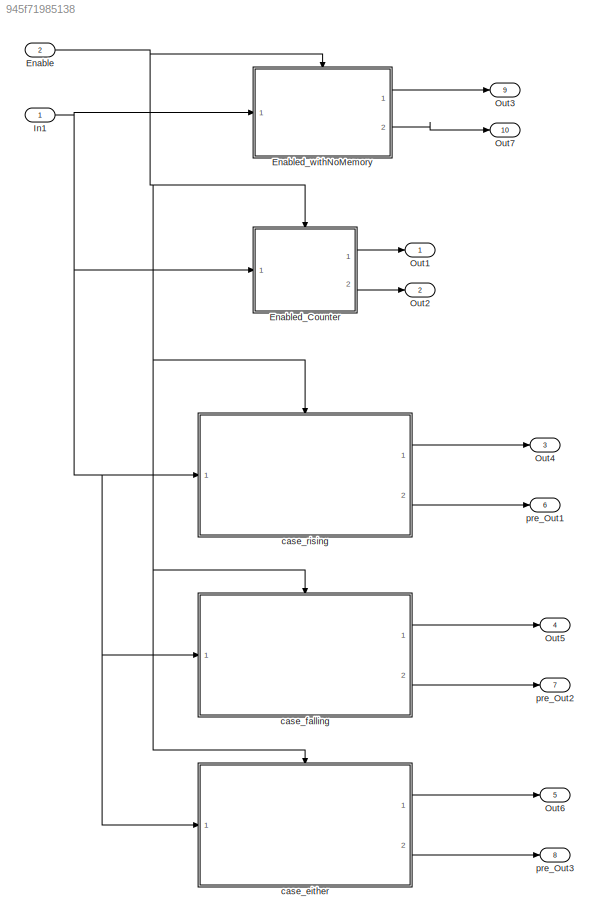
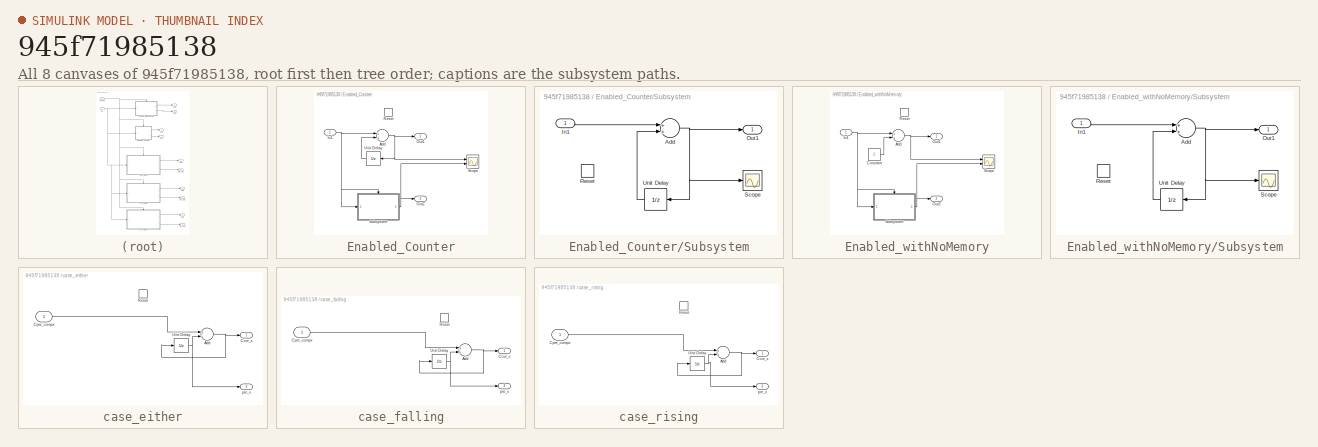
[diagram: thumbnail index - all 8 canvases of the model, root first then tree order]
MODEL slx_945f71985138
KIND model
CONFIG AbsTol = auto
CONFIG EnableMultiTasking = off
CONFIG FixedStep = 0.200000
CONFIG MaxStep = auto
CONFIG MinStep = auto
CONFIG RelTol = 1e-3
CONFIG SampleTimeConstraint = Unconstrained
CONFIG Solver = FixedStepDiscrete
CONFIG SolverName = FixedStepDiscrete
CONFIG StartTime = 0.0
CONFIG StopTime = 10.0
BLOCK [Inport] Enable
  IconDisplay = Port number
  Port = 2
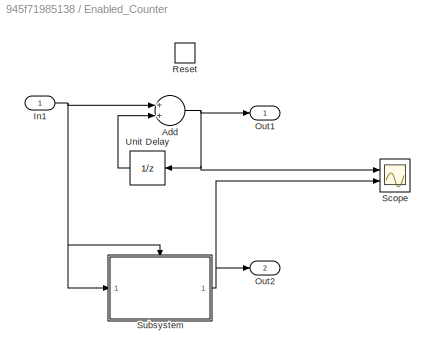
BLOCK [SubSystem] Enabled_Counter
  Ports = [1, 2, 0, 0, 0, 0, 0, 0, 1]
  RequestExecContextInheritance = off
  TreatAsAtomicUnit = on
  Variant = off
BLOCK [Sum] Enabled_Counter/Add
  InputSameDT = off
  OutDataTypeStr = Inherit: Inherit via internal rule
  Ports = [2, 1]
  SaturateOnIntegerOverflow = off
BLOCK [Inport] Enabled_Counter/In1
  IconDisplay = Port number
BLOCK [Outport] Enabled_Counter/Out1
  IconDisplay = Port number
  InitialOutput = 0
  OutputWhenDisabled = reset
BLOCK [Outport] Enabled_Counter/Out2
  IconDisplay = Port number
  Port = 2
BLOCK [ResetPort] Enabled_Counter/Reset
  DisableCoverage = on
BLOCK [Scope] Enabled_Counter/Scope
  NumInputPorts = 2
  Ports = [2]
  ScopeSpecificationString = C++SS(StrPVP('Open','off'),StrPVP('TimeRange','auto'),StrPVP('TickLabels','OneTimeTick'),StrPVP('ShowLegends','off'),StrPVP('LimitDataPoints','off'),StrPVP('MaxDataPoints','5000'),StrPVP('SaveToWorkspace','off'),StrPVP('SaveName','ScopeData2'),StrPVP('YMin','-10.00000~-10.00000'),StrPVP('YMax','10.00000~10.00000'),StrPVP('BlockParamSampleInput','off'),StrPVP('BlockParamSampleTime','-1'),StrPVP('Zo...<+628ch>
BLOCK [SubSystem] Enabled_Counter/Subsystem
  Ports = [1, 1, 0, 0, 0, 0, 0, 0, 1]
  RequestExecContextInheritance = off
  TreatAsAtomicUnit = on
  Variant = off
BLOCK [Sum] Enabled_Counter/Subsystem/Add
  InputSameDT = off
  OutDataTypeStr = Inherit: Inherit via internal rule
  Ports = [2, 1]
  SaturateOnIntegerOverflow = off
BLOCK [Inport] Enabled_Counter/Subsystem/In1
  IconDisplay = Port number
BLOCK [Outport] Enabled_Counter/Subsystem/Out1
  IconDisplay = Port number
BLOCK [ResetPort] Enabled_Counter/Subsystem/Reset
  DisableCoverage = on
BLOCK [Scope] Enabled_Counter/Subsystem/Scope
  NumInputPorts = 1
  Ports = [1]
  ScopeSpecificationString = C++SS(StrPVP('Open','off'),StrPVP('TimeRange','auto'),StrPVP('TickLabels','OneTimeTick'),StrPVP('ShowLegends','off'),StrPVP('LimitDataPoints','off'),StrPVP('MaxDataPoints','5000'),StrPVP('SaveToWorkspace','off'),StrPVP('SaveName','ScopeData1'),StrPVP('YMin','0.9'),StrPVP('YMax','1.1'),StrPVP('BlockParamSampleInput','off'),StrPVP('BlockParamSampleTime','-1'),StrPVP('ZoomMode','on'),StrPVP('Grid','o...<+569ch>
BLOCK [UnitDelay] Enabled_Counter/Subsystem/Unit Delay
  InputProcessing = Elements as channels (sample based)
  SampleTime = -1
BLOCK [UnitDelay] Enabled_Counter/Unit Delay
  InputProcessing = Elements as channels (sample based)
  SampleTime = -1
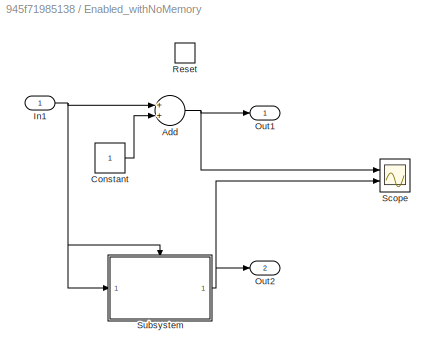
BLOCK [SubSystem] Enabled_withNoMemory
  Ports = [1, 2, 0, 0, 0, 0, 0, 0, 1]
  RequestExecContextInheritance = off
  TreatAsAtomicUnit = on
  Variant = off
BLOCK [Sum] Enabled_withNoMemory/Add
  InputSameDT = off
  OutDataTypeStr = Inherit: Inherit via internal rule
  Ports = [2, 1]
  SaturateOnIntegerOverflow = off
BLOCK [Constant] Enabled_withNoMemory/Constant
BLOCK [Inport] Enabled_withNoMemory/In1
  IconDisplay = Port number
BLOCK [Outport] Enabled_withNoMemory/Out1
  IconDisplay = Port number
  InitialOutput = 0
  OutputWhenDisabled = reset
BLOCK [Outport] Enabled_withNoMemory/Out2
  IconDisplay = Port number
  Port = 2
BLOCK [ResetPort] Enabled_withNoMemory/Reset
  DisableCoverage = on
BLOCK [Scope] Enabled_withNoMemory/Scope
  NumInputPorts = 2
  Ports = [2]
  ScopeSpecificationString = C++SS(StrPVP('Open','off'),StrPVP('TimeRange','auto'),StrPVP('TickLabels','OneTimeTick'),StrPVP('ShowLegends','off'),StrPVP('LimitDataPoints','off'),StrPVP('MaxDataPoints','5000'),StrPVP('SaveToWorkspace','off'),StrPVP('SaveName','ScopeData2'),StrPVP('YMin','-10.00000~-10.00000'),StrPVP('YMax','10.00000~10.00000'),StrPVP('BlockParamSampleInput','off'),StrPVP('BlockParamSampleTime','-1'),StrPVP('Zo...<+628ch>
BLOCK [SubSystem] Enabled_withNoMemory/Subsystem
  Ports = [1, 1, 0, 0, 0, 0, 0, 0, 1]
  RequestExecContextInheritance = off
  TreatAsAtomicUnit = on
  Variant = off
BLOCK [Sum] Enabled_withNoMemory/Subsystem/Add
  InputSameDT = off
  OutDataTypeStr = Inherit: Inherit via internal rule
  Ports = [2, 1]
  SaturateOnIntegerOverflow = off
BLOCK [Inport] Enabled_withNoMemory/Subsystem/In1
  IconDisplay = Port number
BLOCK [Outport] Enabled_withNoMemory/Subsystem/Out1
  IconDisplay = Port number
BLOCK [ResetPort] Enabled_withNoMemory/Subsystem/Reset
  DisableCoverage = on
BLOCK [Scope] Enabled_withNoMemory/Subsystem/Scope
  NumInputPorts = 1
  Ports = [1]
  ScopeSpecificationString = C++SS(StrPVP('Open','off'),StrPVP('TimeRange','auto'),StrPVP('TickLabels','OneTimeTick'),StrPVP('ShowLegends','off'),StrPVP('LimitDataPoints','off'),StrPVP('MaxDataPoints','5000'),StrPVP('SaveToWorkspace','off'),StrPVP('SaveName','ScopeData1'),StrPVP('YMin','0.9'),StrPVP('YMax','1.1'),StrPVP('BlockParamSampleInput','off'),StrPVP('BlockParamSampleTime','-1'),StrPVP('ZoomMode','on'),StrPVP('Grid','o...<+569ch>
BLOCK [UnitDelay] Enabled_withNoMemory/Subsystem/Unit Delay
  InputProcessing = Elements as channels (sample based)
  SampleTime = -1
BLOCK [Inport] In1
  IconDisplay = Port number
BLOCK [Outport] Out1
  IconDisplay = Port number
BLOCK [Outport] Out2
  IconDisplay = Port number
  Port = 2
BLOCK [Outport] Out3
  IconDisplay = Port number
  Port = 9
BLOCK [Outport] Out4
  IconDisplay = Port number
  Port = 3
BLOCK [Outport] Out5
  IconDisplay = Port number
  Port = 4
BLOCK [Outport] Out6
  IconDisplay = Port number
  Port = 5
BLOCK [Outport] Out7
  IconDisplay = Port number
  Port = 10
BLOCK [SubSystem] case_either
  Ports = [1, 2, 0, 0, 0, 0, 0, 0, 1]
  RequestExecContextInheritance = off
  TreatAsAtomicUnit = on
  Variant = off
BLOCK [Sum] case_either/Add
  InputSameDT = off
  OutDataTypeStr = Inherit: Inherit via internal rule
  Ports = [2, 1]
  SaturateOnIntegerOverflow = off
BLOCK [Outport] case_either/Ccor_x
  IconDisplay = Port number
  InitialOutput = 0
BLOCK [Inport] case_either/Cpre_compx
  IconDisplay = Port number
  OutDataTypeStr = double
  PortDimensions = [1]
BLOCK [ResetPort] case_either/Reset
  DisableCoverage = on
  ResetTriggerType = either
BLOCK [UnitDelay] case_either/Unit Delay
  InputProcessing = Elements as channels (sample based)
  SampleTime = -1.0000000000000000
BLOCK [Outport] case_either/pre_x
  IconDisplay = Port number
  InitialOutput = 0
  Port = 2
BLOCK [SubSystem] case_falling
  Ports = [1, 2, 0, 0, 0, 0, 0, 0, 1]
  RequestExecContextInheritance = off
  TreatAsAtomicUnit = on
  Variant = off
BLOCK [Sum] case_falling/Add
  InputSameDT = off
  OutDataTypeStr = Inherit: Inherit via internal rule
  Ports = [2, 1]
  SaturateOnIntegerOverflow = off
BLOCK [Outport] case_falling/Ccor_x
  IconDisplay = Port number
  InitialOutput = 0
  OutputWhenDisabled = reset
BLOCK [Inport] case_falling/Cpre_compx
  IconDisplay = Port number
  OutDataTypeStr = double
  PortDimensions = [1]
BLOCK [ResetPort] case_falling/Reset
  DisableCoverage = on
  ResetTriggerType = falling
BLOCK [UnitDelay] case_falling/Unit Delay
  InputProcessing = Elements as channels (sample based)
  SampleTime = -1.0000000000000000
BLOCK [Outport] case_falling/pre_x
  IconDisplay = Port number
  InitialOutput = 0
  Port = 2
BLOCK [SubSystem] case_rising
  Ports = [1, 2, 0, 0, 0, 0, 0, 0, 1]
  RequestExecContextInheritance = off
  TreatAsAtomicUnit = on
  Variant = off
BLOCK [Sum] case_rising/Add
  InputSameDT = off
  OutDataTypeStr = Inherit: Inherit via internal rule
  Ports = [2, 1]
  SaturateOnIntegerOverflow = off
BLOCK [Outport] case_rising/Ccor_x
  IconDisplay = Port number
  InitialOutput = 0
BLOCK [Inport] case_rising/Cpre_compx
  IconDisplay = Port number
  OutDataTypeStr = double
  PortDimensions = [1]
BLOCK [ResetPort] case_rising/Reset
  DisableCoverage = on
BLOCK [UnitDelay] case_rising/Unit Delay
  InputProcessing = Elements as channels (sample based)
  SampleTime = -1.0000000000000000
BLOCK [Outport] case_rising/pre_x
  IconDisplay = Port number
  InitialOutput = 0
  Port = 2
BLOCK [Outport] pre_Out1
  IconDisplay = Port number
  Port = 6
BLOCK [Outport] pre_Out2
  IconDisplay = Port number
  Port = 7
BLOCK [Outport] pre_Out3
  IconDisplay = Port number
  Port = 8
NET Enable:1 -> Enabled_Counter:Reset, Enabled_withNoMemory:Reset, case_either:Reset, case_falling:Reset, case_rising:Reset
NET Enabled_Counter/Add:1 -> Enabled_Counter/Out1:1, Enabled_Counter/Scope:1, Enabled_Counter/Unit Delay:1
NET Enabled_Counter/In1:1 -> Enabled_Counter/Add:1, Enabled_Counter/Subsystem:1, Enabled_Counter/Subsystem:Reset
NET Enabled_Counter/Subsystem/Add:1 -> Enabled_Counter/Subsystem/Out1:1, Enabled_Counter/Subsystem/Scope:1, Enabled_Counter/Subsystem/Unit Delay:1
LINE Enabled_Counter/Subsystem/In1:1 -> Enabled_Counter/Subsystem/Add:1
LINE Enabled_Counter/Subsystem/Unit Delay:1 -> Enabled_Counter/Subsystem/Add:2
NET Enabled_Counter/Subsystem:1 -> Enabled_Counter/Out2:1, Enabled_Counter/Scope:2
LINE Enabled_Counter/Unit Delay:1 -> Enabled_Counter/Add:2
LINE Enabled_Counter:1 -> Out1:1
LINE Enabled_Counter:2 -> Out2:1
NET Enabled_withNoMemory/Add:1 -> Enabled_withNoMemory/Out1:1, Enabled_withNoMemory/Scope:1
LINE Enabled_withNoMemory/Constant:1 -> Enabled_withNoMemory/Add:2
NET Enabled_withNoMemory/In1:1 -> Enabled_withNoMemory/Add:1, Enabled_withNoMemory/Subsystem:1, Enabled_withNoMemory/Subsystem:Reset
NET Enabled_withNoMemory/Subsystem/Add:1 -> Enabled_withNoMemory/Subsystem/Out1:1, Enabled_withNoMemory/Subsystem/Scope:1, Enabled_withNoMemory/Subsystem/Unit Delay:1
LINE Enabled_withNoMemory/Subsystem/In1:1 -> Enabled_withNoMemory/Subsystem/Add:1
LINE Enabled_withNoMemory/Subsystem/Unit Delay:1 -> Enabled_withNoMemory/Subsystem/Add:2
NET Enabled_withNoMemory/Subsystem:1 -> Enabled_withNoMemory/Out2:1, Enabled_withNoMemory/Scope:2
LINE Enabled_withNoMemory:1 -> Out3:1
LINE Enabled_withNoMemory:2 -> Out7:1
NET In1:1 -> Enabled_Counter:1, Enabled_withNoMemory:1, case_either:1, case_falling:1, case_rising:1
NET case_either/Add:1 -> case_either/Ccor_x:1, case_either/Unit Delay:1
LINE case_either/Cpre_compx:1 -> case_either/Add:1
NET case_either/Unit Delay:1 -> case_either/Add:2, case_either/pre_x:1
LINE case_either:1 -> Out6:1
LINE case_either:2 -> pre_Out3:1
NET case_falling/Add:1 -> case_falling/Ccor_x:1, case_falling/Unit Delay:1
LINE case_falling/Cpre_compx:1 -> case_falling/Add:1
NET case_falling/Unit Delay:1 -> case_falling/Add:2, case_falling/pre_x:1
LINE case_falling:1 -> Out5:1
LINE case_falling:2 -> pre_Out2:1
NET case_rising/Add:1 -> case_rising/Ccor_x:1, case_rising/Unit Delay:1
LINE case_rising/Cpre_compx:1 -> case_rising/Add:1
NET case_rising/Unit Delay:1 -> case_rising/Add:2, case_rising/pre_x:1
LINE case_rising:1 -> Out4:1
LINE case_rising:2 -> pre_Out1:1
note: NET lines group one-source signal fan-out (src -> all destinations, sorted); 1:1 wires keep LINE
